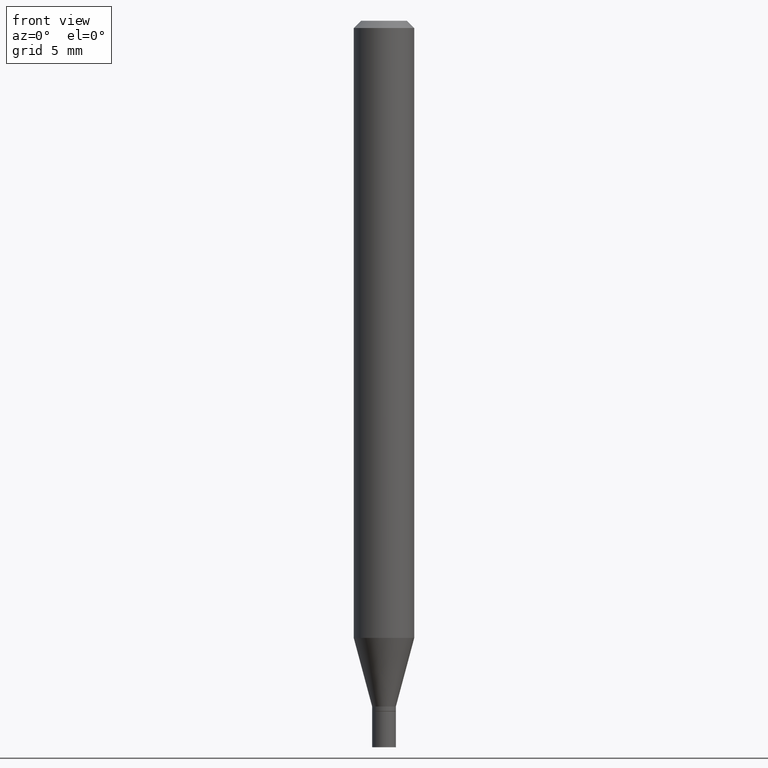
[diagram: clean part render]
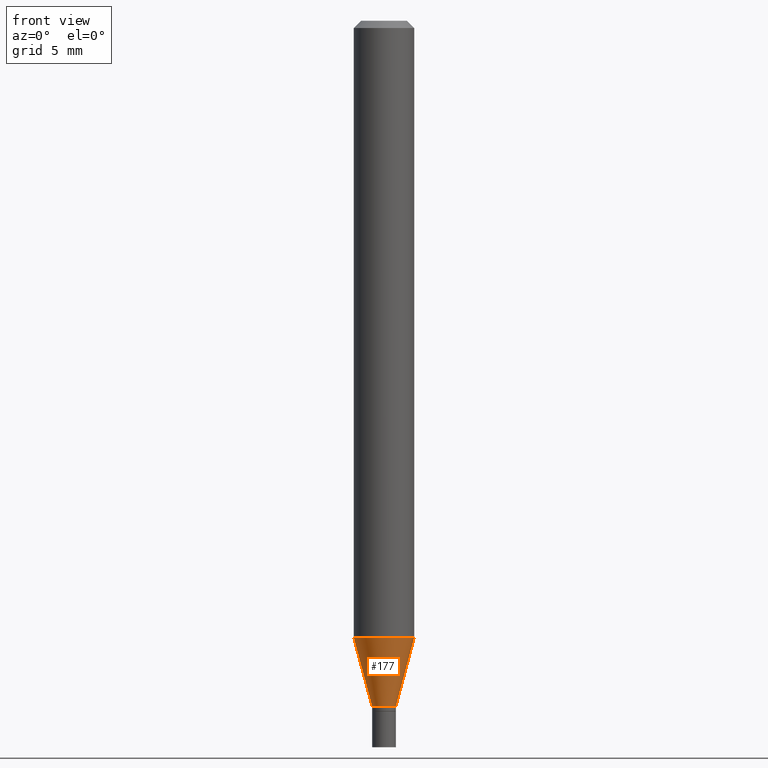
[diagram: same view with one face highlighted and labeled with its STEP entity id]
A machine part, front view. The second image highlights one B-rep face of the part: STEP entity #177.
In plain terms, the highlighted conical surface has half-angle 15 deg.
Its self-contained STEP definition (entity closure, byte-faithful):
#43 = ORIENTED_EDGE ( 'NONE', *, *, #205, .T. ) ;
#49 = ORIENTED_EDGE ( 'NONE', *, *, #279, .F. ) ;
#69 = DIRECTION ( 'NONE',  ( 1.000000000000000000, -6.982962677686254089E-15, 0.000000000000000000 ) ) ;
#71 = CARTESIAN_POINT ( 'NONE',  ( 0.02449999999999992809, -5.115020161405207405E-15, -1.416000000000000147 ) ) ;
#90 = AXIS2_PLACEMENT_3D ( 'NONE', #147, #106, #69 ) ;
#106 = DIRECTION ( 'NONE',  ( -2.445468806185136597E-29, 3.491481338843145583E-15, 1.000000000000000000 ) ) ;
#114 = LINE ( 'NONE', #71, #140 ) ;
#124 = VERTEX_POINT ( 'NONE', #271 ) ;
#129 = EDGE_CURVE ( 'NONE', #124, #192, #216, .T. ) ;
#140 = VECTOR ( 'NONE', #211, 39.37007874015747433 ) ;
#147 = CARTESIAN_POINT ( 'NONE',  ( 3.462783829558154044E-29, -4.943937575801894533E-15, -1.416000000000000147 ) ) ;
#160 = AXIS2_PLACEMENT_3D ( 'NONE', #428, #399, #210 ) ;
#162 = EDGE_CURVE ( 'NONE', #364, #462, #338, .T. ) ;
#177 = ADVANCED_FACE ( 'NONE', ( #406 ), #301, .T. ) ;
#192 = VERTEX_POINT ( 'NONE', #321 ) ;
#204 = CARTESIAN_POINT ( 'NONE',  ( 3.115972503903860033E-29, -4.448782917292728720E-15, -1.274182069312382870 ) ) ;
#205 = EDGE_CURVE ( 'NONE', #462, #192, #114, .T. ) ;
#210 = DIRECTION ( 'NONE',  ( 1.000000000000000000, -6.982962677686254089E-15, 0.000000000000000000 ) ) ;
#211 = DIRECTION ( 'NONE',  ( 0.2588190451025214611, 1.565188264969621573E-15, 0.9659258262890682012 ) ) ;
#216 = CIRCLE ( 'NONE', #230, 0.06250000000000000000 ) ;
#230 = AXIS2_PLACEMENT_3D ( 'NONE', #204, #420, #349 ) ;
#243 = DIRECTION ( 'NONE',  ( -0.2588190451025214611, 5.211531920934551042E-15, 0.9659258262890682012 ) ) ;
#247 = LINE ( 'NONE', #432, #323 ) ;
#263 = ORIENTED_EDGE ( 'NONE', *, *, #162, .T. ) ;
#271 = CARTESIAN_POINT ( 'NONE',  ( -0.06250000000000000000, -4.004693707442665315E-15, -1.274182069312382870 ) ) ;
#279 = EDGE_CURVE ( 'NONE', #364, #124, #247, .T. ) ;
#301 = CONICAL_SURFACE ( 'NONE', #160, 0.02449999999999992809, 0.2617993877991501295 ) ;
#303 = EDGE_LOOP ( 'NONE', ( #49, #263, #43, #328 ) ) ;
#321 = CARTESIAN_POINT ( 'NONE',  ( 0.06250000000000000000, -4.885218084648119600E-15, -1.274182069312382870 ) ) ;
#323 = VECTOR ( 'NONE', #243, 39.37007874015747433 ) ;
#328 = ORIENTED_EDGE ( 'NONE', *, *, #129, .F. ) ;
#338 = CIRCLE ( 'NONE', #90, 0.02449999999999992809 ) ;
#349 = DIRECTION ( 'NONE',  ( 1.000000000000000000, -6.982962677686262766E-15, 0.000000000000000000 ) ) ;
#364 = VERTEX_POINT ( 'NONE', #412 ) ;
#399 = DIRECTION ( 'NONE',  ( -2.445468806185136597E-29, 3.491481338843145583E-15, 1.000000000000000000 ) ) ;
#406 = FACE_OUTER_BOUND ( 'NONE', #303, .T. ) ;
#412 = CARTESIAN_POINT ( 'NONE',  ( -0.02449999999999992809, -4.387274156491668166E-15, -1.416000000000000147 ) ) ;
#420 = DIRECTION ( 'NONE',  ( -2.445468806185136597E-29, 3.491481338843145583E-15, 1.000000000000000000 ) ) ;
#428 = CARTESIAN_POINT ( 'NONE',  ( 3.462783829558154044E-29, -4.943937575801894533E-15, -1.416000000000000147 ) ) ;
#432 = CARTESIAN_POINT ( 'NONE',  ( -0.02449999999999992809, -4.769854605540670227E-15, -1.416000000000000147 ) ) ;
#440 = CARTESIAN_POINT ( 'NONE',  ( 0.02449999999999992809, -5.115020161405207405E-15, -1.416000000000000147 ) ) ;
#462 = VERTEX_POINT ( 'NONE', #440 ) ;